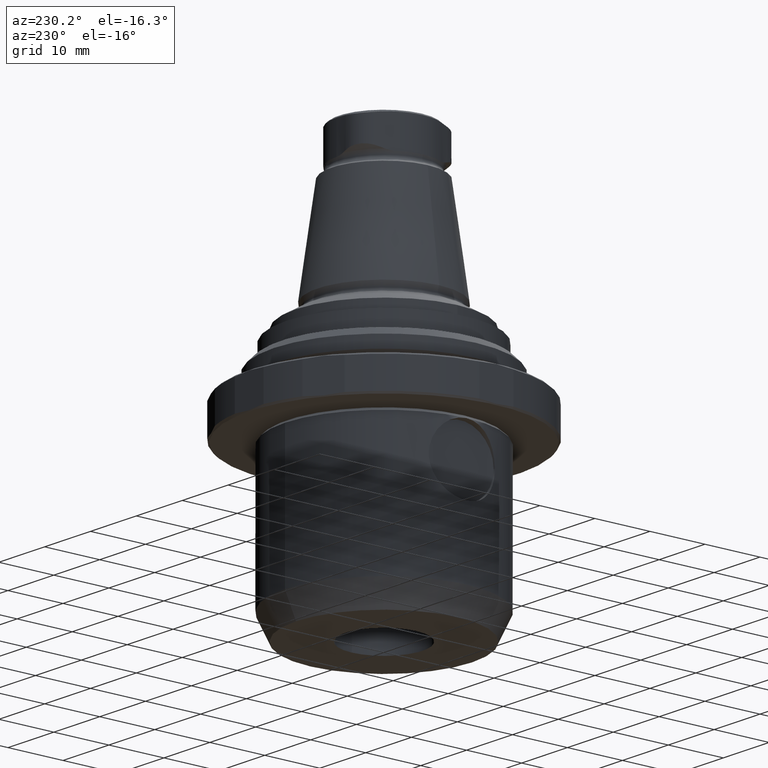
[diagram: clean part render]
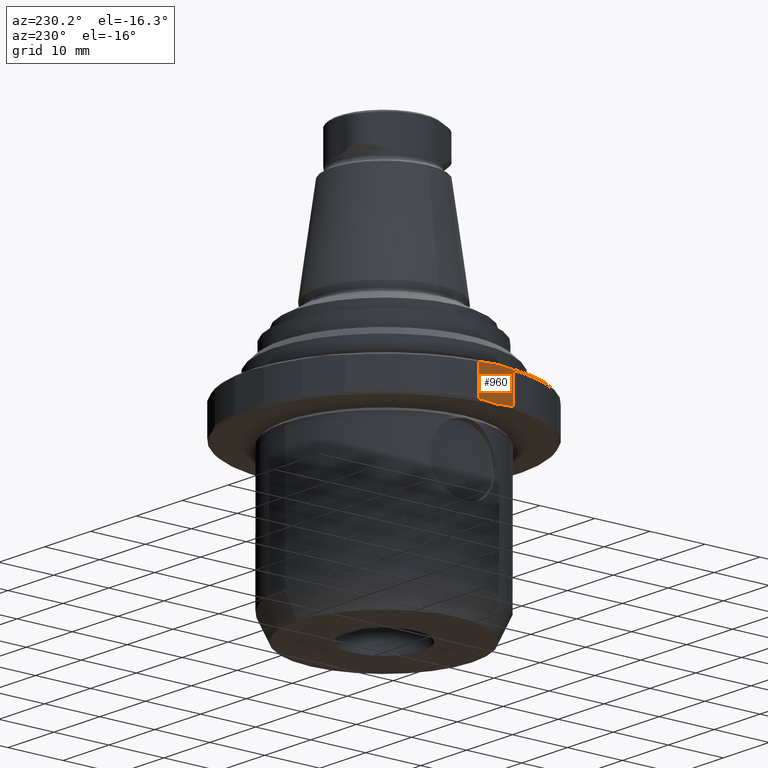
[diagram: same view with one face highlighted and labeled with its STEP entity id]
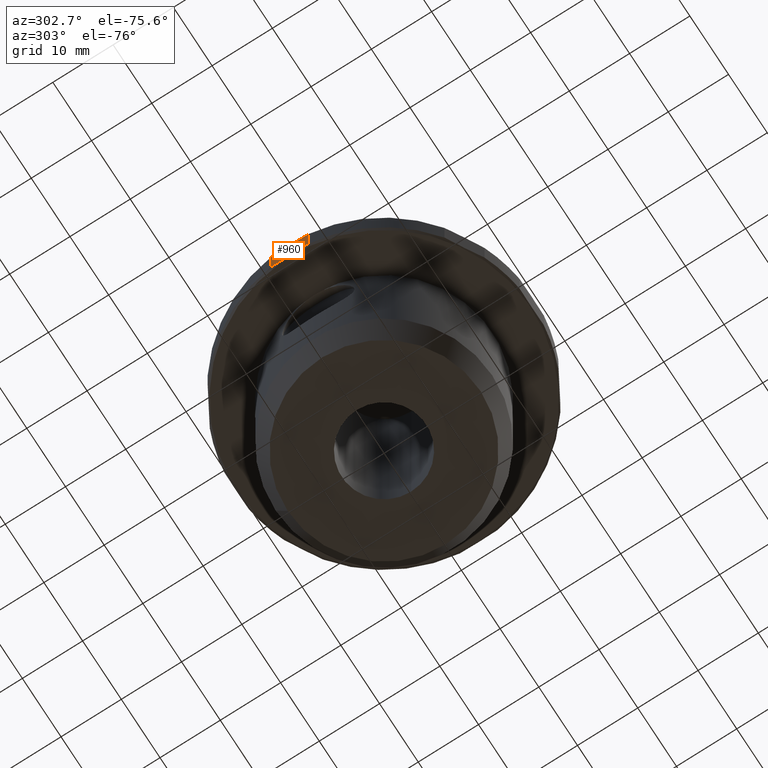
[diagram: same view with one face highlighted and labeled with its STEP entity id]
A machine part, auxiliary view. The second image highlights one B-rep face of the part: STEP entity #960.
A second angle (auxiliary view) of the same face is appended — the face is thin or edge-on in the first view.
In plain terms, the highlighted planar face has unit normal (1, -0, 0).
Its self-contained STEP definition (entity closure, byte-faithful):
#39=LINE('',#1761,#67);
#40=LINE('',#1768,#68);
#67=VECTOR('',#1325,1000.);
#68=VECTOR('',#1328,1000.);
#127=B_SPLINE_CURVE_WITH_KNOTS('',3,(#1710,#1711,#1712,#1713),
 .UNSPECIFIED.,.F.,.F.,(4,4),(0.0111130187680983,0.0173638873401942),
 .UNSPECIFIED.);
#134=B_SPLINE_CURVE_WITH_KNOTS('',3,(#1763,#1764,#1765,#1766),
 .UNSPECIFIED.,.F.,.F.,(4,4),(0.0111130187680911,0.0173638873401871),
 .UNSPECIFIED.);
#347=ORIENTED_EDGE('',*,*,#523,.F.);
#348=ORIENTED_EDGE('',*,*,#524,.F.);
#349=ORIENTED_EDGE('',*,*,#525,.F.);
#350=ORIENTED_EDGE('',*,*,#508,.F.);
#508=EDGE_CURVE('',#616,#617,#127,.F.);
#523=EDGE_CURVE('',#629,#616,#39,.F.);
#524=EDGE_CURVE('',#630,#629,#134,.T.);
#525=EDGE_CURVE('',#617,#630,#40,.T.);
#616=VERTEX_POINT('',#1709);
#617=VERTEX_POINT('',#1714);
#629=VERTEX_POINT('',#1760);
#630=VERTEX_POINT('',#1767);
#777=EDGE_LOOP('',(#347,#348,#349,#350));
#873=FACE_BOUND('',#777,.T.);
#902=PLANE('',#1088);
#960=ADVANCED_FACE('',(#873),#902,.F.);
#1088=AXIS2_PLACEMENT_3D('',#1762,#1326,#1327);
#1325=DIRECTION('',(1.1985897436163E-16,5.68031218956752E-33,-1.));
#1326=DIRECTION('',(1.,-3.94301269611163E-16,1.1985897436163E-16));
#1327=DIRECTION('',(1.1985897436163E-16,5.68031218956752E-33,-1.));
#1328=DIRECTION('',(1.1985897436163E-16,5.68031218956752E-33,-1.));
#1709=CARTESIAN_POINT('',(-24.5,3.13687742827157,-11.2937822173508));
#1710=CARTESIAN_POINT('',(-24.5,-3.13687742827155,-11.2937822173508));
#1711=CARTESIAN_POINT('',(-24.5,-1.04612642063249,-11.0282587499826));
#1712=CARTESIAN_POINT('',(-24.5,1.04512495842425,-11.0281315651974));
#1713=CARTESIAN_POINT('',(-24.5,3.13687742827157,-11.2937822173508));
#1714=CARTESIAN_POINT('',(-24.5,-3.13687742827155,-11.2937822173508));
#1760=CARTESIAN_POINT('',(-24.5,3.13687742827157,-16.6937822173509));
#1761=CARTESIAN_POINT('',(-24.5,3.13687742827157,-10.9937822173509));
#1762=CARTESIAN_POINT('',(-24.5,9.6603811054735E-15,-13.9937822173509));
#1763=CARTESIAN_POINT('',(-24.5,-3.13687742827155,-16.6937822173509));
#1764=CARTESIAN_POINT('',(-24.5,-1.04612642063248,-16.9593056847193));
#1765=CARTESIAN_POINT('',(-24.5,1.04512495842426,-16.9594328695046));
#1766=CARTESIAN_POINT('',(-24.5,3.13687742827157,-16.6937822173509));
#1767=CARTESIAN_POINT('',(-24.5,-3.13687742827155,-16.6937822173509));
#1768=CARTESIAN_POINT('',(-24.5,-3.13687742827155,-10.9937822173509));